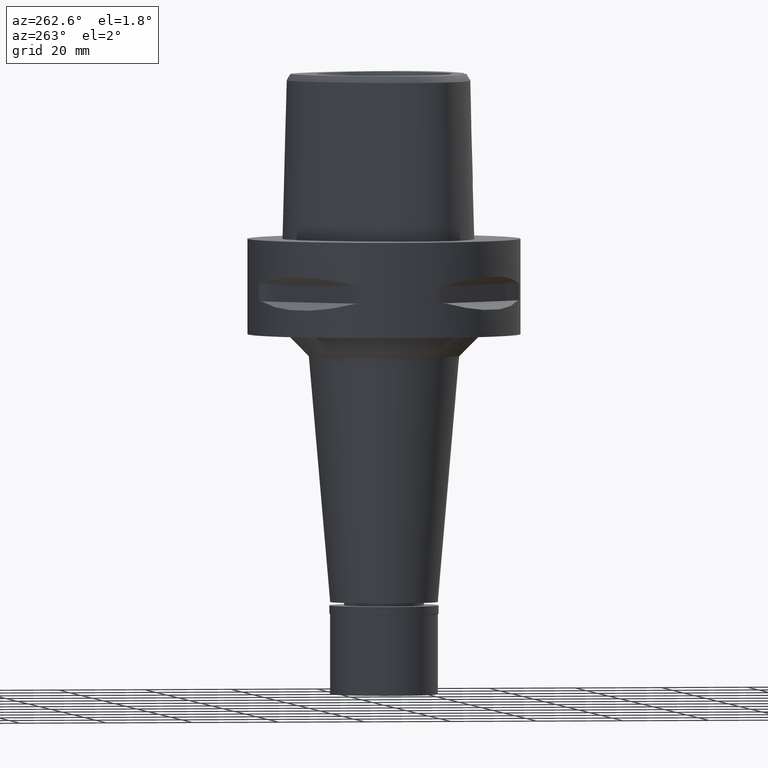
[diagram: clean part render]
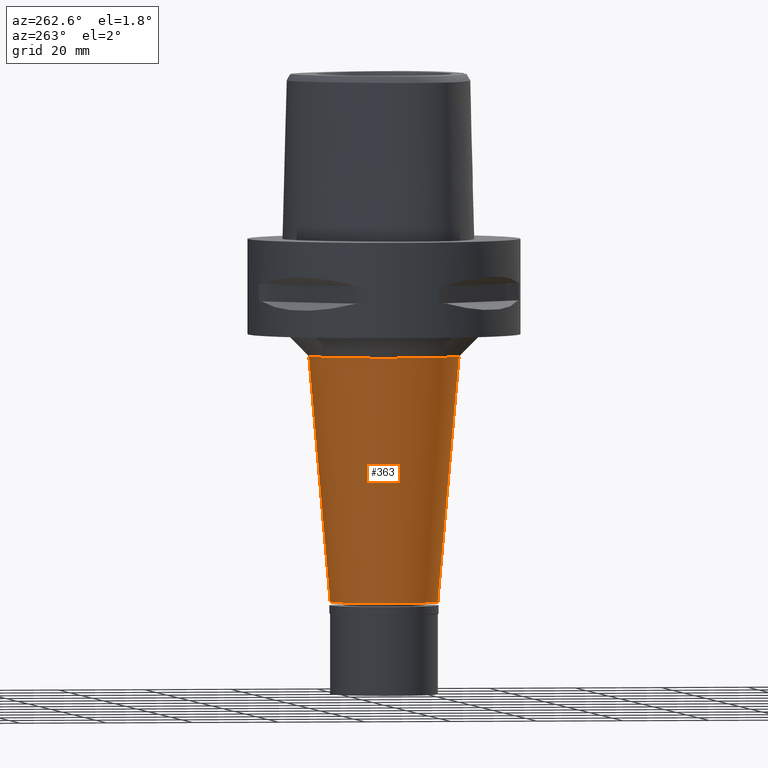
[diagram: same view with one face highlighted and labeled with its STEP entity id]
A machine part, auxiliary view. The second image highlights one B-rep face of the part: STEP entity #363.
In plain terms, the highlighted conical surface has half-angle 5 deg.
Its self-contained STEP definition (entity closure, byte-faithful):
#7 = CARTESIAN_POINT ( 'NONE',  ( 0.0000000000000000000, -17.46060722192000014, -27.00000000000000000 ) ) ;
#14 = VERTEX_POINT ( 'NONE', #2790 ) ;
#77 = DIRECTION ( 'NONE',  ( 0.0000000000000000000, -0.08715574274766398066, -0.9961946980917449901 ) ) ;
#231 = DIRECTION ( 'NONE',  ( 0.0000000000000000000, 1.000000000000000000, 0.0000000000000000000 ) ) ;
#276 = DIRECTION ( 'NONE',  ( 0.0000000000000000000, -1.000000000000000000, 0.0000000000000000000 ) ) ;
#310 = CARTESIAN_POINT ( 'NONE',  ( 0.0000000000000000000, 17.46060722192000014, -27.00000000000000000 ) ) ;
#363 = ADVANCED_FACE ( 'NONE', ( #2674 ), #3651, .T. ) ;
#452 = DIRECTION ( 'NONE',  ( 0.0000000000000000000, 1.000000000000000000, 0.0000000000000000000 ) ) ;
#605 = EDGE_CURVE ( 'NONE', #4752, #2785, #3327, .T. ) ;
#643 = DIRECTION ( 'NONE',  ( 0.0000000000000000000, 0.0000000000000000000, 1.000000000000000000 ) ) ;
#910 = EDGE_LOOP ( 'NONE', ( #3030, #4952, #4791, #3140 ) ) ;
#1419 = EDGE_CURVE ( 'NONE', #14, #4752, #3819, .T. ) ;
#1434 = EDGE_CURVE ( 'NONE', #2173, #2785, #4744, .T. ) ;
#1648 = CARTESIAN_POINT ( 'NONE',  ( 0.0000000000000000000, -12.50000000000000000, -83.70000000000000284 ) ) ;
#1658 = CARTESIAN_POINT ( 'NONE',  ( 0.0000000000000000000, -17.46060722192000014, -27.00000000000000000 ) ) ;
#2172 = AXIS2_PLACEMENT_3D ( 'NONE', #3573, #3142, #452 ) ;
#2173 = VERTEX_POINT ( 'NONE', #7 ) ;
#2183 = CIRCLE ( 'NONE', #2840, 17.46060722192000014 ) ;
#2424 = DIRECTION ( 'NONE',  ( 0.0000000000000000000, 0.08715574274766398066, -0.9961946980917449901 ) ) ;
#2433 = VECTOR ( 'NONE', #2424, 1000.000000000000227 ) ;
#2674 = FACE_OUTER_BOUND ( 'NONE', #910, .T. ) ;
#2785 = VERTEX_POINT ( 'NONE', #1648 ) ;
#2790 = CARTESIAN_POINT ( 'NONE',  ( 0.0000000000000000000, 17.46060722192000014, -27.00000000000000000 ) ) ;
#2840 = AXIS2_PLACEMENT_3D ( 'NONE', #3782, #3319, #276 ) ;
#2959 = CARTESIAN_POINT ( 'NONE',  ( 0.0000000000000000000, 0.0000000000000000000, -55.35000000000000142 ) ) ;
#3030 = ORIENTED_EDGE ( 'NONE', *, *, #605, .T. ) ;
#3040 = CARTESIAN_POINT ( 'NONE',  ( 0.0000000000000000000, 12.50000000000000000, -83.70000000000000284 ) ) ;
#3140 = ORIENTED_EDGE ( 'NONE', *, *, #1419, .T. ) ;
#3142 = DIRECTION ( 'NONE',  ( 0.0000000000000000000, 0.0000000000000000000, 1.000000000000000000 ) ) ;
#3319 = DIRECTION ( 'NONE',  ( 0.0000000000000000000, 0.0000000000000000000, -1.000000000000000000 ) ) ;
#3327 = CIRCLE ( 'NONE', #2172, 12.50000000000000000 ) ;
#3408 = AXIS2_PLACEMENT_3D ( 'NONE', #2959, #643, #231 ) ;
#3573 = CARTESIAN_POINT ( 'NONE',  ( 0.0000000000000000000, 0.0000000000000000000, -83.70000000000000284 ) ) ;
#3651 = CONICAL_SURFACE ( 'NONE', #3408, 14.98030361096000007, 0.08726646259969973729 ) ;
#3782 = CARTESIAN_POINT ( 'NONE',  ( 0.0000000000000000000, 0.0000000000000000000, -27.00000000000000000 ) ) ;
#3819 = LINE ( 'NONE', #310, #4647 ) ;
#4647 = VECTOR ( 'NONE', #77, 1000.000000000000227 ) ;
#4744 = LINE ( 'NONE', #1658, #2433 ) ;
#4752 = VERTEX_POINT ( 'NONE', #3040 ) ;
#4791 = ORIENTED_EDGE ( 'NONE', *, *, #4895, .T. ) ;
#4895 = EDGE_CURVE ( 'NONE', #2173, #14, #2183, .T. ) ;
#4952 = ORIENTED_EDGE ( 'NONE', *, *, #1434, .F. ) ;